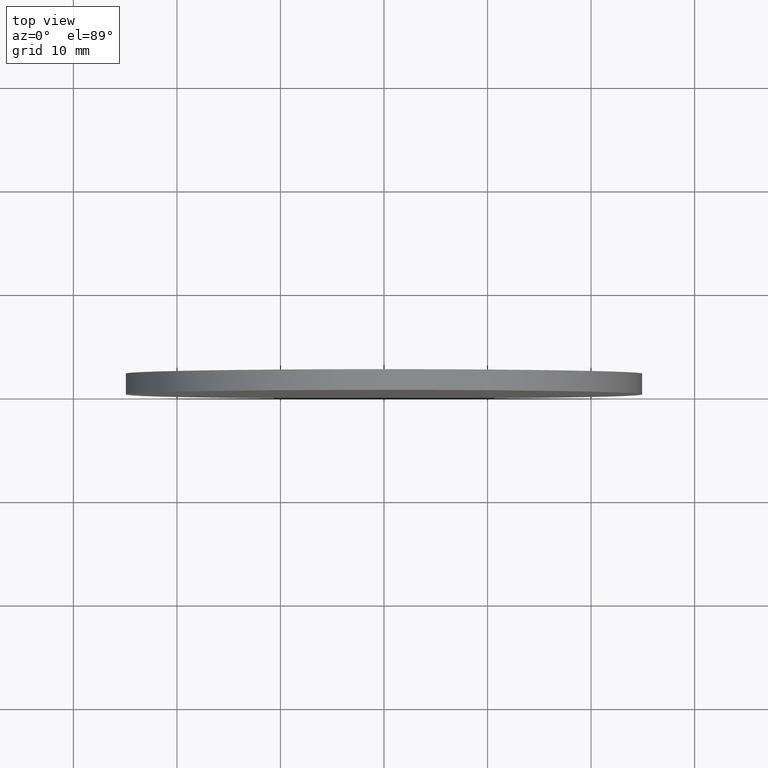
[diagram: clean part render]
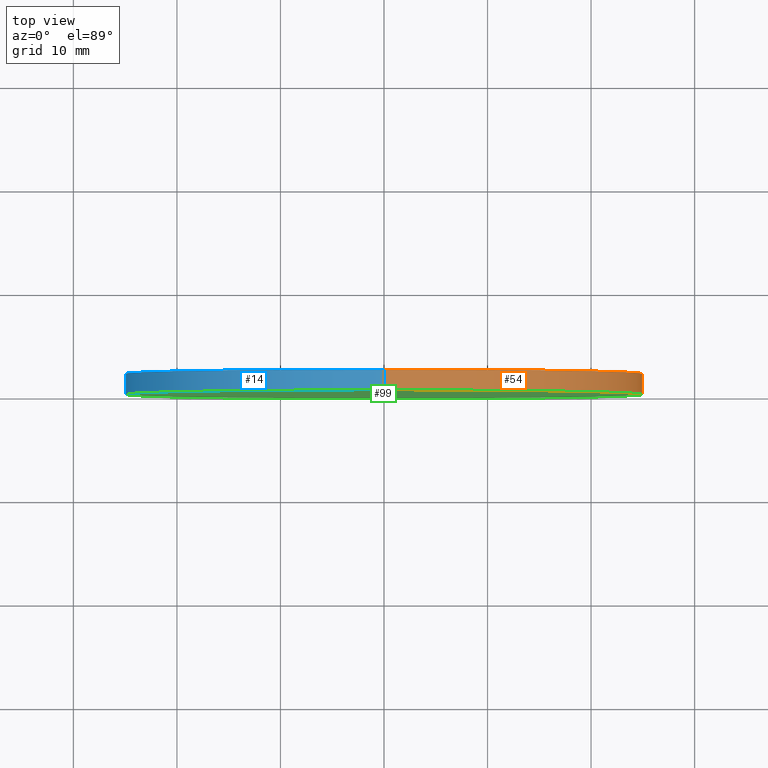
[diagram: same view with three faces highlighted in distinct colors, each labeled with its STEP entity id]
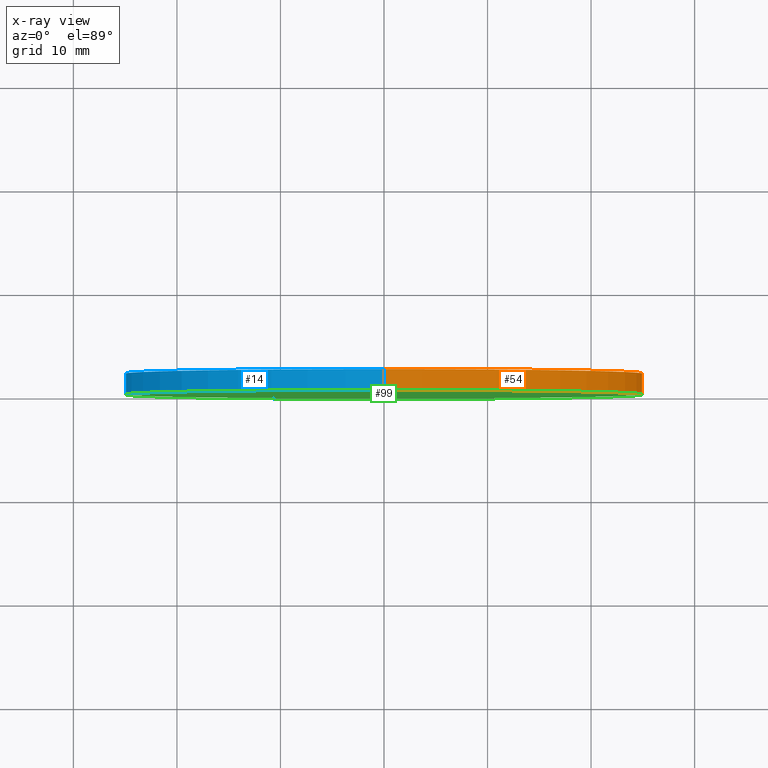
[diagram: x-ray of the same camera — body ghosted, the three highlighted faces saturated]
A machine part, top view with three faces highlighted in distinct colors.
The next image is the same camera in x-ray (body ghosted, the three faces saturated) — at least one of them is partly hidden behind the body in this view.
Their STEP definitions:

[orange] entity #54 — the highlighted cylindrical surface (partial cylindrical patch) has radius 25 mm, axis along (-0, -1, -0).
#1 = VERTEX_POINT ( 'NONE', #124 ) ;
#7 = CARTESIAN_POINT ( 'NONE',  ( 3.061616997868383000E-015, 0.0000000000000000000, 25.00000000000000000 ) ) ;
#10 = ORIENTED_EDGE ( 'NONE', *, *, #63, .F. ) ;
#12 = CYLINDRICAL_SURFACE ( 'NONE', #32, 25.00000000000000000 ) ;
#21 = CARTESIAN_POINT ( 'NONE',  ( 0.0000000000000000000, 2.000000000000000000, -25.00000000000000000 ) ) ;
#23 = FACE_OUTER_BOUND ( 'NONE', #36, .T. ) ;
#25 = CIRCLE ( 'NONE', #101, 25.00000000000000000 ) ;
#28 = DIRECTION ( 'NONE',  ( 0.0000000000000000000, 1.000000000000000000, 0.0000000000000000000 ) ) ;
#30 = DIRECTION ( 'NONE',  ( -0.0000000000000000000, -1.000000000000000000, -0.0000000000000000000 ) ) ;
#32 = AXIS2_PLACEMENT_3D ( 'NONE', #97, #72, #129 ) ;
#34 = VERTEX_POINT ( 'NONE', #21 ) ;
#35 = EDGE_CURVE ( 'NONE', #34, #1, #122, .T. ) ;
#36 = EDGE_LOOP ( 'NONE', ( #10, #86, #53, #56 ) ) ;
#39 = DIRECTION ( 'NONE',  ( 0.0000000000000000000, 0.0000000000000000000, 1.000000000000000000 ) ) ;
#50 = CIRCLE ( 'NONE', #66, 25.00000000000000000 ) ;
#53 = ORIENTED_EDGE ( 'NONE', *, *, #109, .T. ) ;
#54 = ADVANCED_FACE ( 'NONE', ( #23 ), #12, .T. ) ;
#56 = ORIENTED_EDGE ( 'NONE', *, *, #35, .F. ) ;
#63 = EDGE_CURVE ( 'NONE', #64, #34, #25, .T. ) ;
#64 = VERTEX_POINT ( 'NONE', #137 ) ;
#66 = AXIS2_PLACEMENT_3D ( 'NONE', #126, #114, #39 ) ;
#71 = DIRECTION ( 'NONE',  ( -0.0000000000000000000, -1.000000000000000000, -0.0000000000000000000 ) ) ;
#72 = DIRECTION ( 'NONE',  ( -0.0000000000000000000, -1.000000000000000000, -0.0000000000000000000 ) ) ;
#81 = CARTESIAN_POINT ( 'NONE',  ( 0.0000000000000000000, 2.000000000000000000, -25.00000000000000000 ) ) ;
#86 = ORIENTED_EDGE ( 'NONE', *, *, #87, .T. ) ;
#87 = EDGE_CURVE ( 'NONE', #64, #123, #127, .T. ) ;
#93 = DIRECTION ( 'NONE',  ( 0.0000000000000000000, 0.0000000000000000000, 1.000000000000000000 ) ) ;
#96 = CARTESIAN_POINT ( 'NONE',  ( 3.061616997868383000E-015, 2.000000000000000000, 25.00000000000000000 ) ) ;
#97 = CARTESIAN_POINT ( 'NONE',  ( 0.0000000000000000000, 2.000000000000000000, 0.0000000000000000000 ) ) ;
#101 = AXIS2_PLACEMENT_3D ( 'NONE', #104, #28, #93 ) ;
#104 = CARTESIAN_POINT ( 'NONE',  ( 0.0000000000000000000, 2.000000000000000000, 0.0000000000000000000 ) ) ;
#109 = EDGE_CURVE ( 'NONE', #123, #1, #50, .T. ) ;
#110 = VECTOR ( 'NONE', #71, 1000.000000000000000 ) ;
#114 = DIRECTION ( 'NONE',  ( 0.0000000000000000000, 1.000000000000000000, 0.0000000000000000000 ) ) ;
#122 = LINE ( 'NONE', #81, #134 ) ;
#123 = VERTEX_POINT ( 'NONE', #7 ) ;
#124 = CARTESIAN_POINT ( 'NONE',  ( 0.0000000000000000000, 0.0000000000000000000, -25.00000000000000000 ) ) ;
#126 = CARTESIAN_POINT ( 'NONE',  ( 0.0000000000000000000, 0.0000000000000000000, 0.0000000000000000000 ) ) ;
#127 = LINE ( 'NONE', #96, #110 ) ;
#129 = DIRECTION ( 'NONE',  ( 0.0000000000000000000, 0.0000000000000000000, -1.000000000000000000 ) ) ;
#134 = VECTOR ( 'NONE', #30, 1000.000000000000000 ) ;
#137 = CARTESIAN_POINT ( 'NONE',  ( 3.061616997868383000E-015, 2.000000000000000000, 25.00000000000000000 ) ) ;

[blue] entity #14 — the highlighted cylindrical surface (partial cylindrical patch) has radius 25 mm, axis along (-0, -1, -0).
#1 = VERTEX_POINT ( 'NONE', #124 ) ;
#7 = CARTESIAN_POINT ( 'NONE',  ( 3.061616997868383000E-015, 0.0000000000000000000, 25.00000000000000000 ) ) ;
#14 = ADVANCED_FACE ( 'NONE', ( #15 ), #102, .T. ) ;
#15 = FACE_OUTER_BOUND ( 'NONE', #100, .T. ) ;
#21 = CARTESIAN_POINT ( 'NONE',  ( 0.0000000000000000000, 2.000000000000000000, -25.00000000000000000 ) ) ;
#22 = DIRECTION ( 'NONE',  ( 0.0000000000000000000, 0.0000000000000000000, -1.000000000000000000 ) ) ;
#30 = DIRECTION ( 'NONE',  ( -0.0000000000000000000, -1.000000000000000000, -0.0000000000000000000 ) ) ;
#31 = ORIENTED_EDGE ( 'NONE', *, *, #87, .F. ) ;
#34 = VERTEX_POINT ( 'NONE', #21 ) ;
#35 = EDGE_CURVE ( 'NONE', #34, #1, #122, .T. ) ;
#41 = DIRECTION ( 'NONE',  ( 0.0000000000000000000, 1.000000000000000000, 0.0000000000000000000 ) ) ;
#43 = CARTESIAN_POINT ( 'NONE',  ( 0.0000000000000000000, 2.000000000000000000, 0.0000000000000000000 ) ) ;
#44 = EDGE_CURVE ( 'NONE', #34, #64, #48, .T. ) ;
#48 = CIRCLE ( 'NONE', #83, 25.00000000000000000 ) ;
#49 = DIRECTION ( 'NONE',  ( 0.0000000000000000000, 0.0000000000000000000, 1.000000000000000000 ) ) ;
#55 = EDGE_CURVE ( 'NONE', #1, #123, #85, .T. ) ;
#60 = CARTESIAN_POINT ( 'NONE',  ( 0.0000000000000000000, 0.0000000000000000000, 0.0000000000000000000 ) ) ;
#62 = ORIENTED_EDGE ( 'NONE', *, *, #55, .T. ) ;
#64 = VERTEX_POINT ( 'NONE', #137 ) ;
#69 = AXIS2_PLACEMENT_3D ( 'NONE', #43, #106, #22 ) ;
#71 = DIRECTION ( 'NONE',  ( -0.0000000000000000000, -1.000000000000000000, -0.0000000000000000000 ) ) ;
#79 = ORIENTED_EDGE ( 'NONE', *, *, #35, .T. ) ;
#81 = CARTESIAN_POINT ( 'NONE',  ( 0.0000000000000000000, 2.000000000000000000, -25.00000000000000000 ) ) ;
#83 = AXIS2_PLACEMENT_3D ( 'NONE', #118, #41, #105 ) ;
#85 = CIRCLE ( 'NONE', #107, 25.00000000000000000 ) ;
#87 = EDGE_CURVE ( 'NONE', #64, #123, #127, .T. ) ;
#96 = CARTESIAN_POINT ( 'NONE',  ( 3.061616997868383000E-015, 2.000000000000000000, 25.00000000000000000 ) ) ;
#100 = EDGE_LOOP ( 'NONE', ( #31, #113, #79, #62 ) ) ;
#102 = CYLINDRICAL_SURFACE ( 'NONE', #69, 25.00000000000000000 ) ;
#105 = DIRECTION ( 'NONE',  ( 0.0000000000000000000, 0.0000000000000000000, 1.000000000000000000 ) ) ;
#106 = DIRECTION ( 'NONE',  ( -0.0000000000000000000, -1.000000000000000000, -0.0000000000000000000 ) ) ;
#107 = AXIS2_PLACEMENT_3D ( 'NONE', #60, #128, #49 ) ;
#110 = VECTOR ( 'NONE', #71, 1000.000000000000000 ) ;
#113 = ORIENTED_EDGE ( 'NONE', *, *, #44, .F. ) ;
#118 = CARTESIAN_POINT ( 'NONE',  ( 0.0000000000000000000, 2.000000000000000000, 0.0000000000000000000 ) ) ;
#122 = LINE ( 'NONE', #81, #134 ) ;
#123 = VERTEX_POINT ( 'NONE', #7 ) ;
#124 = CARTESIAN_POINT ( 'NONE',  ( 0.0000000000000000000, 0.0000000000000000000, -25.00000000000000000 ) ) ;
#127 = LINE ( 'NONE', #96, #110 ) ;
#128 = DIRECTION ( 'NONE',  ( 0.0000000000000000000, 1.000000000000000000, 0.0000000000000000000 ) ) ;
#134 = VECTOR ( 'NONE', #30, 1000.000000000000000 ) ;
#137 = CARTESIAN_POINT ( 'NONE',  ( 3.061616997868383000E-015, 2.000000000000000000, 25.00000000000000000 ) ) ;

[green] entity #99 — the highlighted planar face has unit normal (0, 1, 0).
#1 = VERTEX_POINT ( 'NONE', #124 ) ;
#7 = CARTESIAN_POINT ( 'NONE',  ( 3.061616997868383000E-015, 0.0000000000000000000, 25.00000000000000000 ) ) ;
#18 = DIRECTION ( 'NONE',  ( 0.0000000000000000000, -0.0000000000000000000, 1.000000000000000000 ) ) ;
#38 = AXIS2_PLACEMENT_3D ( 'NONE', #116, #92, #18 ) ;
#39 = DIRECTION ( 'NONE',  ( 0.0000000000000000000, 0.0000000000000000000, 1.000000000000000000 ) ) ;
#49 = DIRECTION ( 'NONE',  ( 0.0000000000000000000, 0.0000000000000000000, 1.000000000000000000 ) ) ;
#50 = CIRCLE ( 'NONE', #66, 25.00000000000000000 ) ;
#55 = EDGE_CURVE ( 'NONE', #1, #123, #85, .T. ) ;
#60 = CARTESIAN_POINT ( 'NONE',  ( 0.0000000000000000000, 0.0000000000000000000, 0.0000000000000000000 ) ) ;
#66 = AXIS2_PLACEMENT_3D ( 'NONE', #126, #114, #39 ) ;
#82 = ORIENTED_EDGE ( 'NONE', *, *, #55, .F. ) ;
#85 = CIRCLE ( 'NONE', #107, 25.00000000000000000 ) ;
#92 = DIRECTION ( 'NONE',  ( 0.0000000000000000000, 1.000000000000000000, 0.0000000000000000000 ) ) ;
#98 = FACE_OUTER_BOUND ( 'NONE', #131, .T. ) ;
#99 = ADVANCED_FACE ( 'NONE', ( #98 ), #103, .F. ) ;
#103 = PLANE ( 'NONE',  #38 ) ;
#107 = AXIS2_PLACEMENT_3D ( 'NONE', #60, #128, #49 ) ;
#109 = EDGE_CURVE ( 'NONE', #123, #1, #50, .T. ) ;
#114 = DIRECTION ( 'NONE',  ( 0.0000000000000000000, 1.000000000000000000, 0.0000000000000000000 ) ) ;
#116 = CARTESIAN_POINT ( 'NONE',  ( 0.0000000000000000000, 0.0000000000000000000, 0.0000000000000000000 ) ) ;
#119 = ORIENTED_EDGE ( 'NONE', *, *, #109, .F. ) ;
#123 = VERTEX_POINT ( 'NONE', #7 ) ;
#124 = CARTESIAN_POINT ( 'NONE',  ( 0.0000000000000000000, 0.0000000000000000000, -25.00000000000000000 ) ) ;
#126 = CARTESIAN_POINT ( 'NONE',  ( 0.0000000000000000000, 0.0000000000000000000, 0.0000000000000000000 ) ) ;
#128 = DIRECTION ( 'NONE',  ( 0.0000000000000000000, 1.000000000000000000, 0.0000000000000000000 ) ) ;
#131 = EDGE_LOOP ( 'NONE', ( #82, #119 ) ) ;